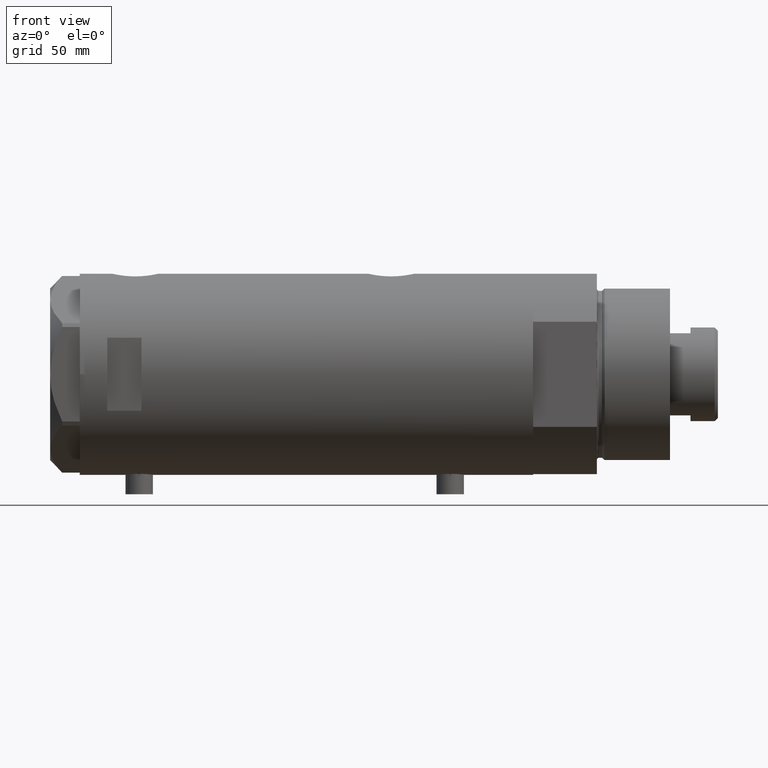
[diagram: clean part render]
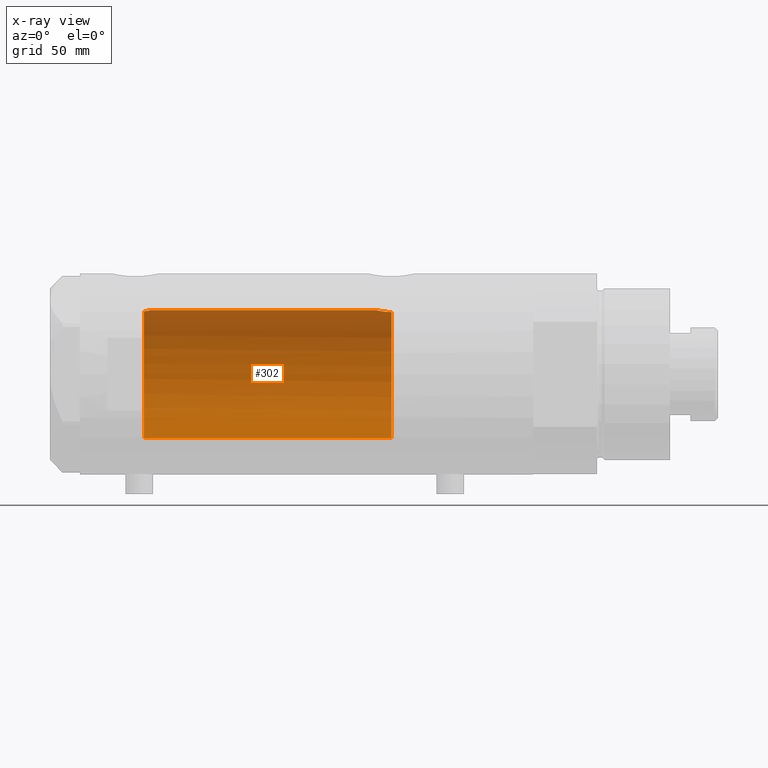
[diagram: x-ray — body ghosted, one internal face saturated and labeled with its STEP entity id]
A machine part, front view, then the same camera in x-ray: the body is ghosted and one INTERNAL B-rep face — a face not visible from any outside direction — is saturated and labeled: STEP entity #302.
In plain terms, the highlighted cylindrical surface (partial cylindrical patch) has radius 28 mm, axis along (1, 0, -0).
Its self-contained STEP definition (entity closure, byte-faithful):
#2 = CARTESIAN_POINT ( 'NONE',  ( -28.00000000000000000, 3.061617155469534704E-16, 71.70000000000001705 ) ) ;
#40 = DIRECTION ( 'NONE',  ( 0.000000000000000000, 0.000000000000000000, -1.000000000000000000 ) ) ;
#84 = B_SPLINE_CURVE_WITH_KNOTS ( 'NONE', 3,
 ( #4698, #3537, #2056, #3962, #234, #4310, #184, #1669, #970, #605, #1711, #2401, #3170, #3213, #3931, #4363, #4722, #2869, #1380, #1282, #4674, #4651, #1355, #2497 ),
 .UNSPECIFIED., .F., .F.,
 ( 4, 2, 2, 2, 2, 2, 2, 2, 2, 2, 2, 4 ),
 ( 0.02064447638625019690, 0.02194711032043805340, 0.02324974425462590644, 0.02390106122171983469, 0.02455237818881376294, 0.02585501212300162291, 0.02650632909009555116, 0.02715764605718948288, 0.02846027999137732550, 0.02976291392556516466, 0.03041423089265908597, 0.03106554785975300728 ),
 .UNSPECIFIED. ) ;
#118 = CARTESIAN_POINT ( 'NONE',  ( -27.95979256003163016, 1.499999999999989564, 72.20000000000001705 ) ) ;
#161 = CARTESIAN_POINT ( 'NONE',  ( -27.99241719529042882, 0.6638535868391195471, 71.78604090346938449 ) ) ;
#184 = CARTESIAN_POINT ( 'NONE',  ( 27.84585502960274184, 2.940342086136633171, -30.20946914370765768 ) ) ;
#214 = CARTESIAN_POINT ( 'NONE',  ( -27.95979256003163016, 1.499999999999989564, 72.20000000000001705 ) ) ;
#234 = CARTESIAN_POINT ( 'NONE',  ( 27.92057377942991891, 2.145335874642057217, -29.86449057456583489 ) ) ;
#275 = EDGE_CURVE ( 'NONE', #4215, #3871, #4214, .T. ) ;
#286 = CARTESIAN_POINT ( 'NONE',  ( 0.000000000000000000, 0.000000000000000000, 98.20000000000000284 ) ) ;
#302 = ADVANCED_FACE ( 'NONE', ( #3241 ), #4746, .F. ) ;
#312 = CARTESIAN_POINT ( 'NONE',  ( 27.93969014165221765, 1.855286977351521704, 69.58124112405666040 ) ) ;
#365 = DIRECTION ( 'NONE',  ( 0.000000000000000000, 0.000000000000000000, 1.000000000000000000 ) ) ;
#379 = DIRECTION ( 'NONE',  ( -0.000000000000000000, -0.000000000000000000, -1.000000000000000000 ) ) ;
#605 = CARTESIAN_POINT ( 'NONE',  ( 27.70785054350542964, 4.050475470458777316, -30.89631279652927276 ) ) ;
#627 = CARTESIAN_POINT ( 'NONE',  ( 27.85549123290575579, 2.850830541327404877, 69.96370468682907529 ) ) ;
#659 = AXIS2_PLACEMENT_3D ( 'NONE', #686, #365, #4808 ) ;
#686 = CARTESIAN_POINT ( 'NONE',  ( 0.000000000000000000, 0.000000000000000000, 72.20000000000001705 ) ) ;
#757 = CARTESIAN_POINT ( 'NONE',  ( 0.000000000000000000, 0.000000000000000000, -36.20000000000000995 ) ) ;
#823 = CARTESIAN_POINT ( 'NONE',  ( 28.00000000000000000, 3.429011037612589276E-15, 98.20000000000000284 ) ) ;
#928 = CARTESIAN_POINT ( 'NONE',  ( -28.00000000000001421, 0.1336978093699988102, 71.70000000000003126 ) ) ;
#970 = CARTESIAN_POINT ( 'NONE',  ( 27.77951318121831292, 3.511620812961478766, -30.53115835401436584 ) ) ;
#1000 = CARTESIAN_POINT ( 'NONE',  ( 27.77752716845531822, 3.554080867558359280, 70.33702809021863800 ) ) ;
#1041 = CARTESIAN_POINT ( 'NONE',  ( 27.59012538417911031, 4.776664836238046163, 71.36675298569846859 ) ) ;
#1211 = CARTESIAN_POINT ( 'NONE',  ( -27.99526641882758327, 0.5315981429410570058, 71.75349288902950207 ) ) ;
#1227 = ORIENTED_EDGE ( 'NONE', *, *, #2620, .T. ) ;
#1282 = CARTESIAN_POINT ( 'NONE',  ( 27.23306259439848276, 6.508606919525674606, -35.10931986330979271 ) ) ;
#1322 = CARTESIAN_POINT ( 'NONE',  ( 27.21605408577812568, 6.579240077698946365, -36.20000000000000995 ) ) ;
#1355 = CARTESIAN_POINT ( 'NONE',  ( 27.21525044627862755, 6.582564457995944807, -35.98128103916471332 ) ) ;
#1380 = CARTESIAN_POINT ( 'NONE',  ( 27.26132124301009441, 6.389601967157239493, -34.46983701249831711 ) ) ;
#1436 = AXIS2_PLACEMENT_3D ( 'NONE', #757, #40, #3395 ) ;
#1547 = CARTESIAN_POINT ( 'NONE',  ( -28.00000000000000000, 3.061617155469534704E-16, 71.70000000000001705 ) ) ;
#1669 = CARTESIAN_POINT ( 'NONE',  ( 27.80267334785860101, 3.323944738624912798, -30.41709962017577951 ) ) ;
#1676 = ORIENTED_EDGE ( 'NONE', *, *, #2540, .T. ) ;
#1687 = EDGE_LOOP ( 'NONE', ( #3594, #3952, #1676, #3657, #2810, #1227, #2251 ) ) ;
#1711 = CARTESIAN_POINT ( 'NONE',  ( 27.65669575048418238, 4.382057994727794004, -31.17233761202032838 ) ) ;
#1713 = CARTESIAN_POINT ( 'NONE',  ( -28.00000000000000000, 0.000000000000000000, 98.20000000000000284 ) ) ;
#1714 = EDGE_CURVE ( 'NONE', #3374, #3602, #2460, .T. ) ;
#1788 = CARTESIAN_POINT ( 'NONE',  ( -28.00000000000000000, 0.000000000000000000, -36.20000000000000995 ) ) ;
#1929 = DIRECTION ( 'NONE',  ( -0.000000000000000000, -0.000000000000000000, -1.000000000000000000 ) ) ;
#1942 = B_SPLINE_CURVE_WITH_KNOTS ( 'NONE', 3,
 ( #1547, #928, #4582, #1211, #161, #2010, #2696, #4193, #3473, #118 ),
 .UNSPECIFIED., .F., .F.,
 ( 4, 2, 2, 2, 4 ),
 ( 0.007820031033244191979, 0.008220422245820513049, 0.008620813458396834120, 0.009021204670973155190, 0.009421595883549476261 ),
 .UNSPECIFIED. ) ;
#2010 = CARTESIAN_POINT ( 'NONE',  ( -27.98524528460116656, 0.9176973251888912442, 71.87067998681517622 ) ) ;
#2056 = CARTESIAN_POINT ( 'NONE',  ( 27.98989376185446432, 0.8673308354119273478, -29.56259295538816545 ) ) ;
#2158 = CARTESIAN_POINT ( 'NONE',  ( 27.62184089756353700, 4.590621453796800644, 71.17847296394721468 ) ) ;
#2251 = ORIENTED_EDGE ( 'NONE', *, *, #3257, .F. ) ;
#2401 = CARTESIAN_POINT ( 'NONE',  ( 27.57921322802619457, 4.838471943606465153, -31.63541026849052429 ) ) ;
#2430 = DIRECTION ( 'NONE',  ( -1.000000000000000000, 0.000000000000000000, 0.000000000000000000 ) ) ;
#2460 = LINE ( 'NONE', #1713, #4419 ) ;
#2497 = CARTESIAN_POINT ( 'NONE',  ( 27.21605408577812568, 6.579240077698946365, -36.20000000000000995 ) ) ;
#2505 = AXIS2_PLACEMENT_3D ( 'NONE', #286, #379, #2430 ) ;
#2531 = CARTESIAN_POINT ( 'NONE',  ( 27.87926027245440608, 2.609415915507860895, 69.85365920364245085 ) ) ;
#2540 = EDGE_CURVE ( 'NONE', #4215, #4309, #2602, .T. ) ;
#2570 = CARTESIAN_POINT ( 'NONE',  ( 27.49602064413222635, 5.290780227724656726, 71.97882924682045314 ) ) ;
#2602 = CIRCLE ( 'NONE', #659, 28.00000000000000000 ) ;
#2620 = EDGE_CURVE ( 'NONE', #3602, #3583, #2661, .T. ) ;
#2661 = CIRCLE ( 'NONE', #1436, 28.00000000000000000 ) ;
#2696 = CARTESIAN_POINT ( 'NONE',  ( -27.98091329043153053, 1.040475137928631444, 71.92286628694220951 ) ) ;
#2763 = VECTOR ( 'NONE', #1929, 1000.000000000000000 ) ;
#2810 = ORIENTED_EDGE ( 'NONE', *, *, #1714, .T. ) ;
#2869 = CARTESIAN_POINT ( 'NONE',  ( 27.28989504668421517, 6.268149480003700091, -34.05093353430704184 ) ) ;
#2872 = CARTESIAN_POINT ( 'NONE',  ( 27.92131942247208798, 2.112374604004425116, 69.66259974202708349 ) ) ;
#2989 = CARTESIAN_POINT ( 'NONE',  ( 28.00000000000000000, 8.058211040487717449E-16, -29.52000000000000313 ) ) ;
#3073 = EDGE_CURVE ( 'NONE', #3871, #4432, #3116, .T. ) ;
#3116 = LINE ( 'NONE', #823, #2763 ) ;
#3170 = CARTESIAN_POINT ( 'NONE',  ( 27.55311958554909424, 4.984468698502475981, -31.79897075987406296 ) ) ;
#3213 = CARTESIAN_POINT ( 'NONE',  ( 27.50226589723266102, 5.257822516958276182, -32.13779315141981385 ) ) ;
#3215 = CARTESIAN_POINT ( 'NONE',  ( 27.71586615897684780, 3.998795151939225523, 70.64767395625744939 ) ) ;
#3241 = FACE_OUTER_BOUND ( 'NONE', #1687, .T. ) ;
#3248 = CARTESIAN_POINT ( 'NONE',  ( 27.46622653369042411, 5.441176343402230664, 72.20000000000001705 ) ) ;
#3257 = EDGE_CURVE ( 'NONE', #4432, #3583, #84, .T. ) ;
#3266 = CARTESIAN_POINT ( 'NONE',  ( 27.52730847012277948, 5.126288527110444804, 71.76623399461912811 ) ) ;
#3286 = CARTESIAN_POINT ( 'NONE',  ( 27.98435453724556510, 1.072101232728050579, 69.38566097371688102 ) ) ;
#3333 = DIRECTION ( 'NONE',  ( -0.000000000000000000, -0.000000000000000000, -1.000000000000000000 ) ) ;
#3354 = CARTESIAN_POINT ( 'NONE',  ( 28.00000000000000000, 0.000000000000000000, 69.32000000000000739 ) ) ;
#3374 = VERTEX_POINT ( 'NONE', #2 ) ;
#3395 = DIRECTION ( 'NONE',  ( -1.000000000000000000, 0.000000000000000000, 0.000000000000000000 ) ) ;
#3473 = CARTESIAN_POINT ( 'NONE',  ( -27.96553810493171355, 1.392903837632989861, 72.11967787822476339 ) ) ;
#3511 = CARTESIAN_POINT ( 'NONE',  ( 27.46622653369042411, 5.441176343402230664, 72.20000000000001705 ) ) ;
#3537 = CARTESIAN_POINT ( 'NONE',  ( 28.00000000000000355, 0.4344375524774767294, -29.51999999999999957 ) ) ;
#3583 = VERTEX_POINT ( 'NONE', #1322 ) ;
#3594 = ORIENTED_EDGE ( 'NONE', *, *, #3073, .F. ) ;
#3602 = VERTEX_POINT ( 'NONE', #1788 ) ;
#3657 = ORIENTED_EDGE ( 'NONE', *, *, #3854, .F. ) ;
#3854 = EDGE_CURVE ( 'NONE', #3374, #4309, #1942, .T. ) ;
#3871 = VERTEX_POINT ( 'NONE', #4629 ) ;
#3931 = CARTESIAN_POINT ( 'NONE',  ( 27.47751794615729537, 5.385218554237049204, -32.31285718566402210 ) ) ;
#3952 = ORIENTED_EDGE ( 'NONE', *, *, #275, .F. ) ;
#3962 = CARTESIAN_POINT ( 'NONE',  ( 27.94984428957576128, 1.729919005741101357, -29.73624844305086512 ) ) ;
#4061 = CARTESIAN_POINT ( 'NONE',  ( 28.00000000000000355, 0.5407212781083803321, 69.32000000000003581 ) ) ;
#4193 = CARTESIAN_POINT ( 'NONE',  ( -27.97108316360492708, 1.277733827521402299, 72.04702003590384152 ) ) ;
#4214 = B_SPLINE_CURVE_WITH_KNOTS ( 'NONE', 3,
 ( #3248, #2570, #3266, #1041, #2158, #3215, #1000, #627, #2531, #2872, #312, #3286, #4061, #3354 ),
 .UNSPECIFIED., .F., .F.,
 ( 4, 2, 2, 2, 2, 2, 4 ),
 ( 0.03488855882532450325, 0.03568791961119571754, 0.03648728039706693183, 0.03808600196880933264, 0.03888536275468051917, 0.03968472354055171264, 0.04128344511229409958 ),
 .UNSPECIFIED. ) ;
#4215 = VERTEX_POINT ( 'NONE', #3511 ) ;
#4309 = VERTEX_POINT ( 'NONE', #214 ) ;
#4310 = CARTESIAN_POINT ( 'NONE',  ( 27.86588799758910895, 2.744542339393448493, -30.11578757899564351 ) ) ;
#4363 = CARTESIAN_POINT ( 'NONE',  ( 27.40633791352276560, 5.740289853568799394, -32.85469713442370221 ) ) ;
#4419 = VECTOR ( 'NONE', #3333, 1000.000000000000000 ) ;
#4432 = VERTEX_POINT ( 'NONE', #2989 ) ;
#4582 = CARTESIAN_POINT ( 'NONE',  ( -27.99904244501445660, 0.2667594590511107033, 71.71065610639783472 ) ) ;
#4629 = CARTESIAN_POINT ( 'NONE',  ( 28.00000000000000000, 0.000000000000000000, 69.32000000000000739 ) ) ;
#4651 = CARTESIAN_POINT ( 'NONE',  ( 27.21712162367727927, 6.574850051620749092, -35.76016190408788731 ) ) ;
#4674 = CARTESIAN_POINT ( 'NONE',  ( 27.22604017942136423, 6.537820648187911310, -35.32472952793341392 ) ) ;
#4698 = CARTESIAN_POINT ( 'NONE',  ( 28.00000000000000000, 8.058211040487717449E-16, -29.52000000000000313 ) ) ;
#4722 = CARTESIAN_POINT ( 'NONE',  ( 27.36295003163000672, 5.941130795499232065, -33.23794896005177435 ) ) ;
#4746 = CYLINDRICAL_SURFACE ( 'NONE', #2505, 28.00000000000000000 ) ;
#4808 = DIRECTION ( 'NONE',  ( 1.000000000000000000, 0.000000000000000000, 0.000000000000000000 ) ) ;